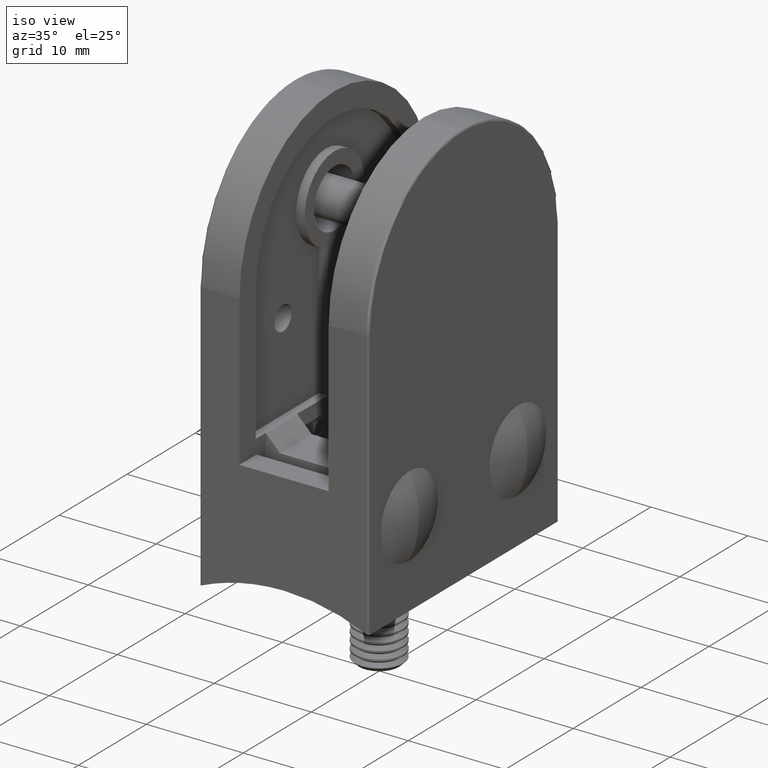
[diagram: clean part render]
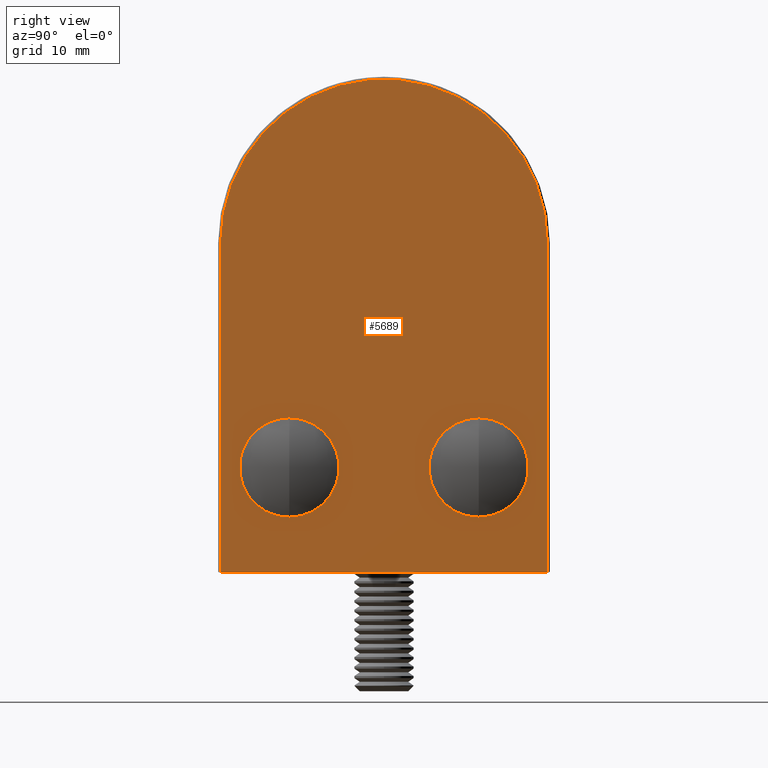
[diagram: tour spotlight — one face highlighted and labeled with its STEP entity id]
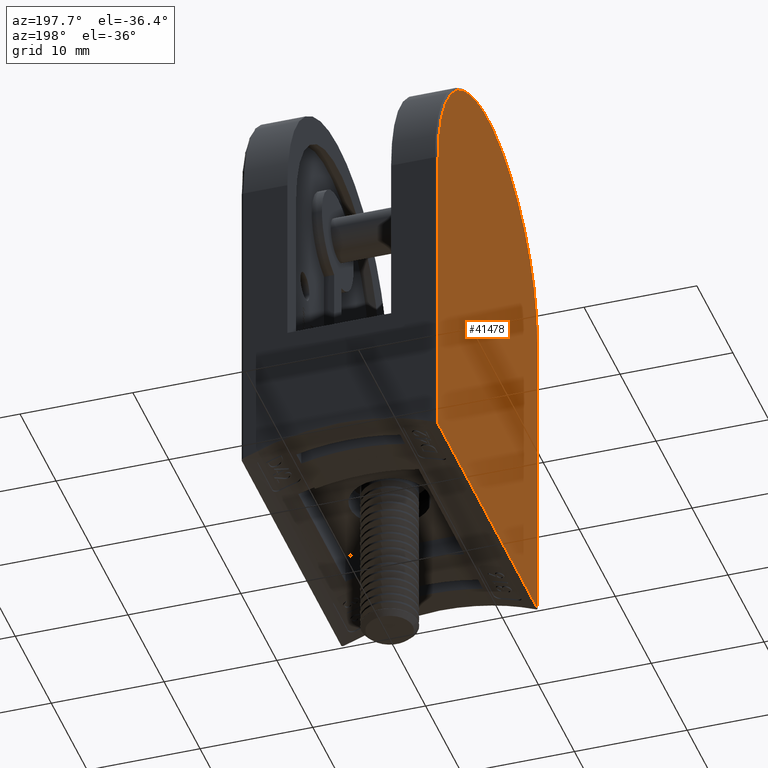
[diagram: tour spotlight — one face highlighted and labeled with its STEP entity id]
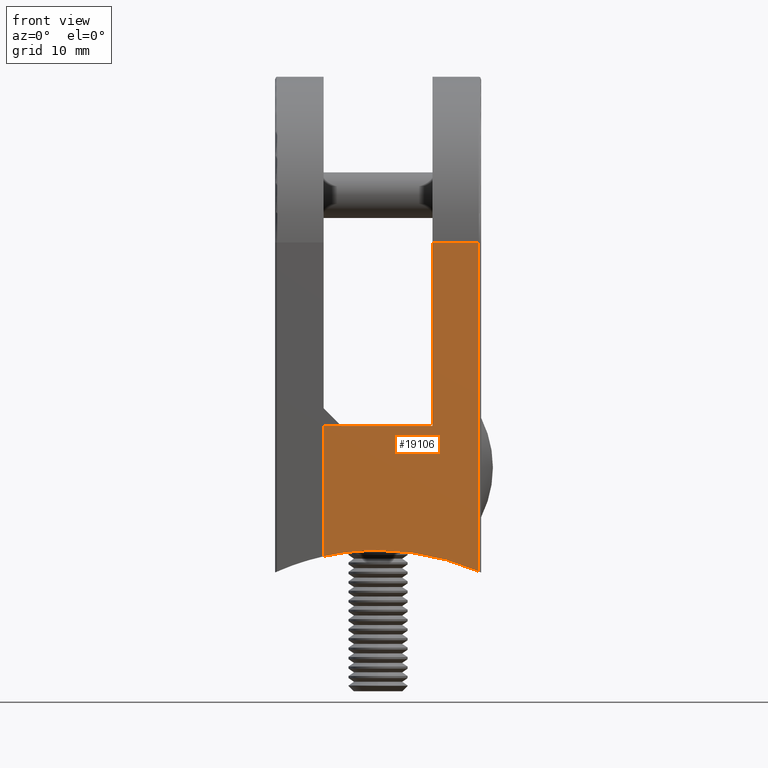
[diagram: tour spotlight — one face highlighted and labeled with its STEP entity id]
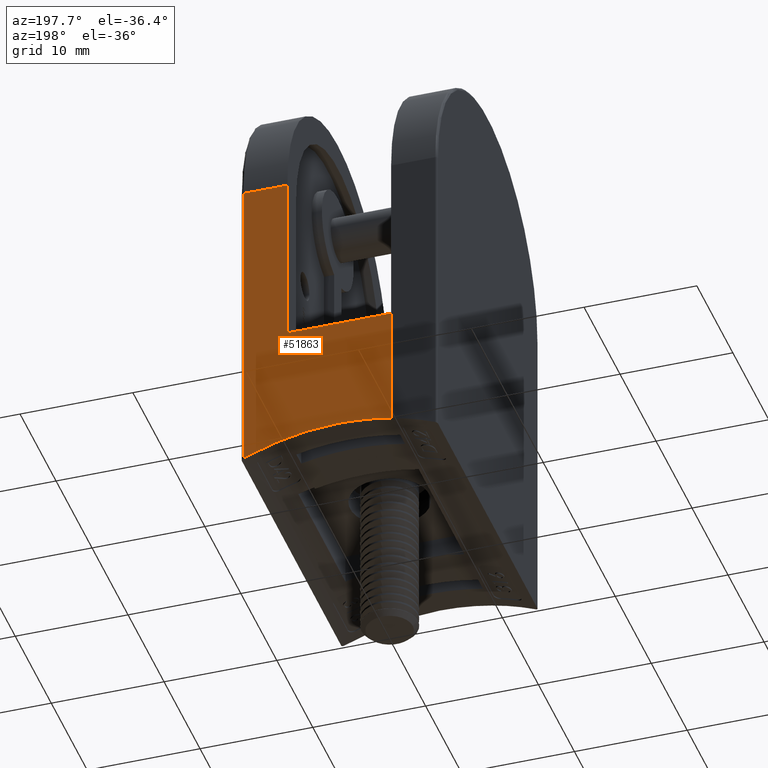
[diagram: tour spotlight — one face highlighted and labeled with its STEP entity id]
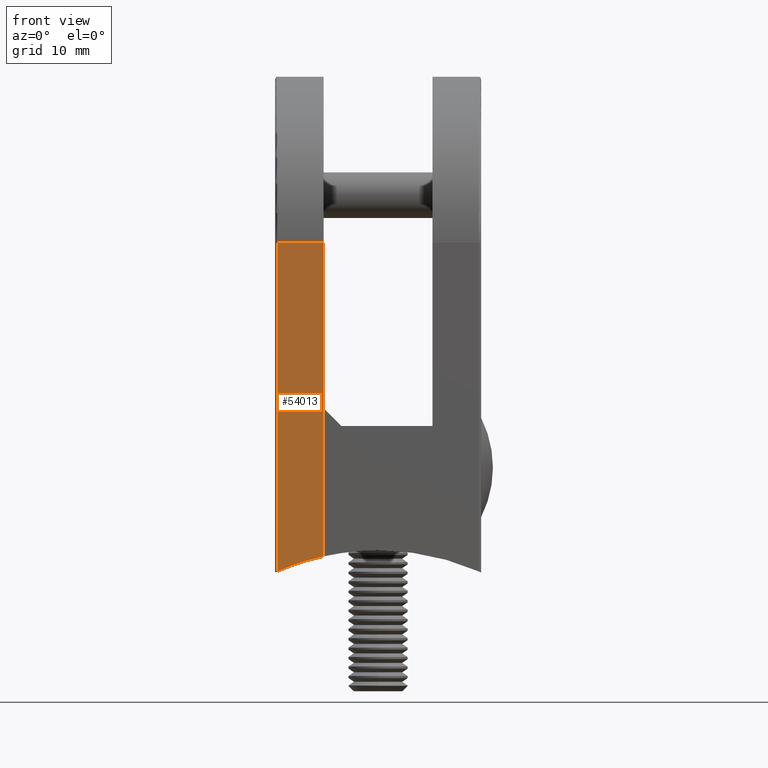
[diagram: tour spotlight — one face highlighted and labeled with its STEP entity id]
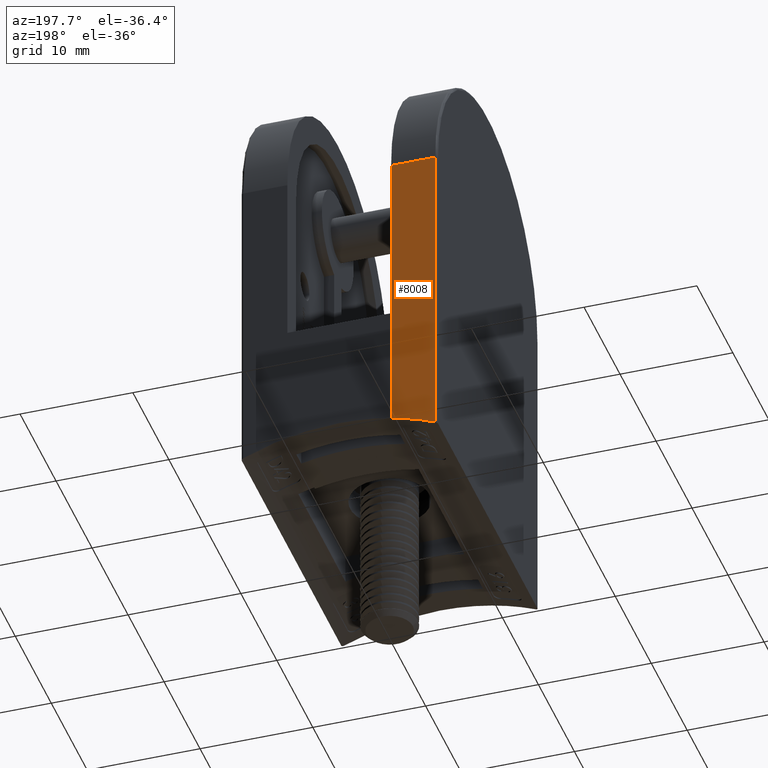
[diagram: tour spotlight — one face highlighted and labeled with its STEP entity id]
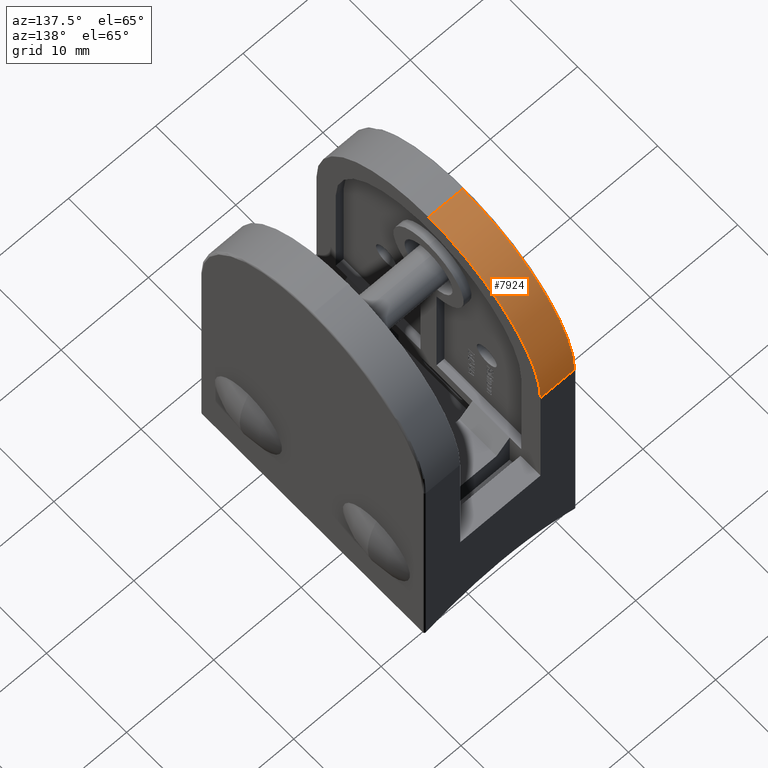
[diagram: tour spotlight — one face highlighted and labeled with its STEP entity id]
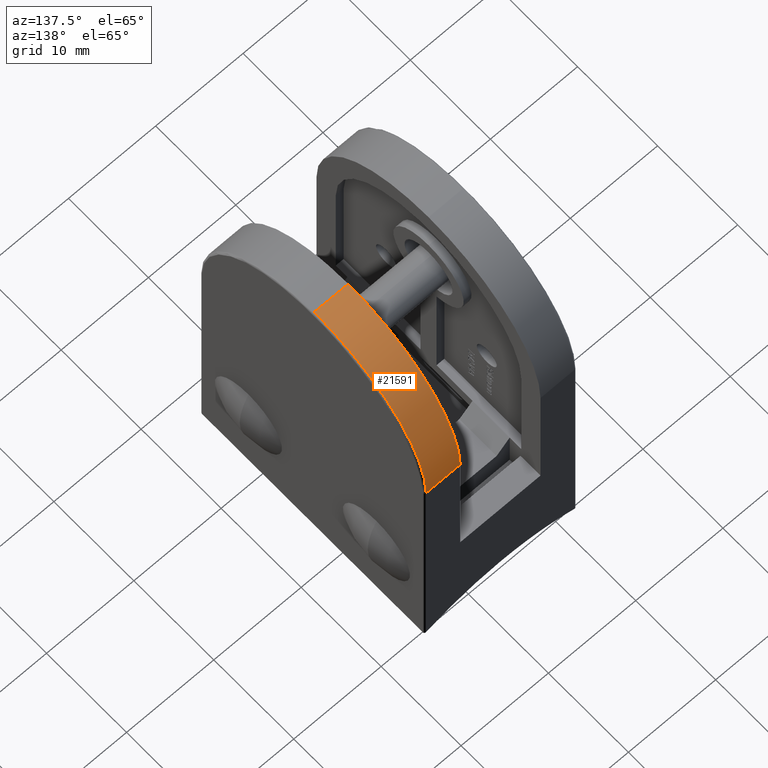
[diagram: tour spotlight — one face highlighted and labeled with its STEP entity id]
A machine part: a face-by-face anatomy tour. The part has 1391 B-rep faces; the first image is the clean iso view, then the 8 largest visible faces are spotlighted one at a time (largest first), each with its STEP entity span.

Face 1 — right view, entity #5689. In plain terms, the highlighted planar face has unit normal (-1, 0, 0).
Definition (entity closure, byte-faithful):
#252 = AXIS2_PLACEMENT_3D ( 'NONE', #45073, #2108, #41267 ) ;
#733 = CARTESIAN_POINT ( 'NONE',  ( 0.0000000000000000000, -13.99999999999999800, -1.867385070818801300 ) ) ;
#1504 = VERTEX_POINT ( 'NONE', #9386 ) ;
#1528 = EDGE_LOOP ( 'NONE', ( #26994, #34986 ) ) ;
#1674 = AXIS2_PLACEMENT_3D ( 'NONE', #27490, #45019, #18858 ) ;
#2108 = DIRECTION ( 'NONE',  ( -1.000000000000000000, -0.0000000000000000000, -0.0000000000000000000 ) ) ;
#2859 = CARTESIAN_POINT ( 'NONE',  ( -3.469446951953614200E-015, -8.000000000000000000, 6.999999999999992900 ) ) ;
#3005 = PLANE ( 'NONE',  #50418 ) ;
#3101 = EDGE_CURVE ( 'NONE', #10426, #50999, #56491, .T. ) ;
#3748 = CARTESIAN_POINT ( 'NONE',  ( 0.0000000000000000000, -13.79999999999999400, 25.99999999999999600 ) ) ;
#4409 = AXIS2_PLACEMENT_3D ( 'NONE', #2859, #11800, #33418 ) ;
#4573 = CIRCLE ( 'NONE', #6510, 4.099999999999998800 ) ;
#5463 = EDGE_CURVE ( 'NONE', #50999, #10426, #4573, .T. ) ;
#5689 = ADVANCED_FACE ( 'NONE', ( #34623, #51680, #7282 ), #3005, .F. ) ;
#6510 = AXIS2_PLACEMENT_3D ( 'NONE', #34314, #43065, #16146 ) ;
#6907 = ORIENTED_EDGE ( 'NONE', *, *, #28330, .T. ) ;
#7007 = CARTESIAN_POINT ( 'NONE',  ( 0.0000000000000000000, 0.0000000000000000000, 25.99999999999999600 ) ) ;
#7282 = FACE_OUTER_BOUND ( 'NONE', #13563, .T. ) ;
#7990 = EDGE_CURVE ( 'NONE', #45856, #21569, #53575, .T. ) ;
#9386 = CARTESIAN_POINT ( 'NONE',  ( 0.0000000000000000000, -13.79999999999999700, -1.867385070818801300 ) ) ;
#9575 = EDGE_CURVE ( 'NONE', #46604, #36673, #17289, .T. ) ;
#10426 = VERTEX_POINT ( 'NONE', #24040 ) ;
#11341 = AXIS2_PLACEMENT_3D ( 'NONE', #29162, #33356, #20708 ) ;
#11800 = DIRECTION ( 'NONE',  ( -1.000000000000000000, -0.0000000000000000000, -0.0000000000000000000 ) ) ;
#12179 = ORIENTED_EDGE ( 'NONE', *, *, #41283, .T. ) ;
#12250 = VECTOR ( 'NONE', #31850, 1000.000000000000000 ) ;
#13563 = EDGE_LOOP ( 'NONE', ( #15792, #12179, #6907, #48902 ) ) ;
#14248 = CARTESIAN_POINT ( 'NONE',  ( 0.0000000000000000000, -13.79999999999999400, 25.99999999999999600 ) ) ;
#14329 = ORIENTED_EDGE ( 'NONE', *, *, #48135, .F. ) ;
#14432 = DIRECTION ( 'NONE',  ( -0.0000000000000000000, 6.672013369141565500E-017, 1.000000000000000000 ) ) ;
#15792 = ORIENTED_EDGE ( 'NONE', *, *, #7990, .T. ) ;
#15831 = DIRECTION ( 'NONE',  ( -0.0000000000000000000, 6.672013369141565500E-017, -1.000000000000000000 ) ) ;
#16146 = DIRECTION ( 'NONE',  ( 0.0000000000000000000, 0.0000000000000000000, 1.000000000000000000 ) ) ;
#16223 = EDGE_CURVE ( 'NONE', #22558, #45856, #50044, .T. ) ;
#17046 = VECTOR ( 'NONE', #14432, 1000.000000000000000 ) ;
#17289 = CIRCLE ( 'NONE', #4409, 4.099999999999998800 ) ;
#18858 = DIRECTION ( 'NONE',  ( 0.0000000000000000000, 0.0000000000000000000, -1.000000000000000000 ) ) ;
#20708 = DIRECTION ( 'NONE',  ( 0.0000000000000000000, 0.0000000000000000000, 1.000000000000000000 ) ) ;
#20726 = DIRECTION ( 'NONE',  ( 1.000000000000000000, 0.0000000000000000000, 0.0000000000000000000 ) ) ;
#21569 = VERTEX_POINT ( 'NONE', #46088 ) ;
#22558 = VERTEX_POINT ( 'NONE', #3748 ) ;
#23010 = CARTESIAN_POINT ( 'NONE',  ( -3.469446951953614200E-015, -8.000000000000000000, 2.899999999999993700 ) ) ;
#23037 = CIRCLE ( 'NONE', #11341, 4.099999999999998800 ) ;
#23850 = ORIENTED_EDGE ( 'NONE', *, *, #9575, .F. ) ;
#23922 = CARTESIAN_POINT ( 'NONE',  ( -3.469446951953614200E-015, -8.000000000000000000, 11.09999999999999300 ) ) ;
#24040 = CARTESIAN_POINT ( 'NONE',  ( -3.469446951953614200E-015, 8.000000000000000000, 2.899999999999993700 ) ) ;
#24265 = CARTESIAN_POINT ( 'NONE',  ( 0.0000000000000000000, 13.79999999999999400, 25.99999999999999600 ) ) ;
#26994 = ORIENTED_EDGE ( 'NONE', *, *, #5463, .F. ) ;
#27269 = EDGE_LOOP ( 'NONE', ( #23850, #14329 ) ) ;
#27490 = CARTESIAN_POINT ( 'NONE',  ( 0.0000000000000000000, 0.0000000000000000000, 25.99999999999999600 ) ) ;
#28330 = EDGE_CURVE ( 'NONE', #1504, #22558, #36182, .T. ) ;
#29026 = CARTESIAN_POINT ( 'NONE',  ( 0.0000000000000000000, 13.79999999999999400, 25.99999999999999600 ) ) ;
#29162 = CARTESIAN_POINT ( 'NONE',  ( -3.469446951953614200E-015, -8.000000000000000000, 6.999999999999992900 ) ) ;
#31850 = DIRECTION ( 'NONE',  ( 0.0000000000000000000, -1.000000000000000000, 0.0000000000000000000 ) ) ;
#33356 = DIRECTION ( 'NONE',  ( -1.000000000000000000, -0.0000000000000000000, -0.0000000000000000000 ) ) ;
#33418 = DIRECTION ( 'NONE',  ( 0.0000000000000000000, 0.0000000000000000000, 1.000000000000000000 ) ) ;
#34314 = CARTESIAN_POINT ( 'NONE',  ( -3.469446951953614200E-015, 8.000000000000000000, 6.999999999999992900 ) ) ;
#34623 = FACE_BOUND ( 'NONE', #1528, .T. ) ;
#34986 = ORIENTED_EDGE ( 'NONE', *, *, #3101, .F. ) ;
#36182 = LINE ( 'NONE', #14248, #17046 ) ;
#36673 = VERTEX_POINT ( 'NONE', #23010 ) ;
#37559 = DIRECTION ( 'NONE',  ( 0.0000000000000000000, 0.0000000000000000000, -1.000000000000000000 ) ) ;
#41267 = DIRECTION ( 'NONE',  ( 0.0000000000000000000, 0.0000000000000000000, 1.000000000000000000 ) ) ;
#41283 = EDGE_CURVE ( 'NONE', #21569, #1504, #46413, .T. ) ;
#43065 = DIRECTION ( 'NONE',  ( -1.000000000000000000, -0.0000000000000000000, -0.0000000000000000000 ) ) ;
#45019 = DIRECTION ( 'NONE',  ( -1.000000000000000000, -0.0000000000000000000, -0.0000000000000000000 ) ) ;
#45073 = CARTESIAN_POINT ( 'NONE',  ( -3.469446951953614200E-015, 8.000000000000000000, 6.999999999999992900 ) ) ;
#45856 = VERTEX_POINT ( 'NONE', #29026 ) ;
#46088 = CARTESIAN_POINT ( 'NONE',  ( 0.0000000000000000000, 13.79999999999999500, -1.867385070818804900 ) ) ;
#46413 = LINE ( 'NONE', #733, #12250 ) ;
#46604 = VERTEX_POINT ( 'NONE', #23922 ) ;
#48135 = EDGE_CURVE ( 'NONE', #36673, #46604, #23037, .T. ) ;
#48902 = ORIENTED_EDGE ( 'NONE', *, *, #16223, .T. ) ;
#50044 = CIRCLE ( 'NONE', #1674, 13.79999999999999400 ) ;
#50418 = AXIS2_PLACEMENT_3D ( 'NONE', #7007, #20726, #37559 ) ;
#50829 = VECTOR ( 'NONE', #15831, 1000.000000000000000 ) ;
#50999 = VERTEX_POINT ( 'NONE', #53514 ) ;
#51680 = FACE_BOUND ( 'NONE', #27269, .T. ) ;
#53514 = CARTESIAN_POINT ( 'NONE',  ( -3.469446951953614200E-015, 8.000000000000000000, 11.09999999999999300 ) ) ;
#53575 = LINE ( 'NONE', #24265, #50829 ) ;
#56491 = CIRCLE ( 'NONE', #252, 4.099999999999998800 ) ;

Face 2 — auxiliary view, entity #41478. In plain terms, the highlighted planar face has unit normal (1, 0, 0).
Definition (entity closure, byte-faithful):
#5869 = CARTESIAN_POINT ( 'NONE',  ( 0.0000000000000000000, -13.79999999999999500, 25.99999999999999600 ) ) ;
#6769 = LINE ( 'NONE', #28755, #21765 ) ;
#9060 = DIRECTION ( 'NONE',  ( -0.0000000000000000000, -0.0000000000000000000, 1.000000000000000000 ) ) ;
#9770 = DIRECTION ( 'NONE',  ( 0.0000000000000000000, -1.000000000000000000, 0.0000000000000000000 ) ) ;
#10537 = ORIENTED_EDGE ( 'NONE', *, *, #15087, .T. ) ;
#11217 = VERTEX_POINT ( 'NONE', #39034 ) ;
#11708 = DIRECTION ( 'NONE',  ( 0.0000000000000000000, -0.0000000000000000000, -1.000000000000000000 ) ) ;
#12153 = EDGE_CURVE ( 'NONE', #18859, #32828, #42415, .T. ) ;
#12191 = DIRECTION ( 'NONE',  ( 0.0000000000000000000, 0.0000000000000000000, -1.000000000000000000 ) ) ;
#12469 = DIRECTION ( 'NONE',  ( 0.0000000000000000000, 0.0000000000000000000, -1.000000000000000000 ) ) ;
#13595 = CARTESIAN_POINT ( 'NONE',  ( 0.0000000000000000000, -13.79999999999999500, 25.99999999999999600 ) ) ;
#14005 = EDGE_LOOP ( 'NONE', ( #30277, #10537, #47137, #46730 ) ) ;
#15087 = EDGE_CURVE ( 'NONE', #21243, #18859, #20742, .T. ) ;
#18859 = VERTEX_POINT ( 'NONE', #24124 ) ;
#20742 = LINE ( 'NONE', #49269, #28287 ) ;
#21243 = VERTEX_POINT ( 'NONE', #55868 ) ;
#21765 = VECTOR ( 'NONE', #11708, 1000.000000000000000 ) ;
#24124 = CARTESIAN_POINT ( 'NONE',  ( 8.131516293641283300E-017, -13.79999999999999500, -1.867385070818794500 ) ) ;
#25125 = DIRECTION ( 'NONE',  ( 1.000000000000000000, 0.0000000000000000000, 0.0000000000000000000 ) ) ;
#25198 = DIRECTION ( 'NONE',  ( -1.000000000000000000, -0.0000000000000000000, -0.0000000000000000000 ) ) ;
#28287 = VECTOR ( 'NONE', #9770, 1000.000000000000000 ) ;
#28755 = CARTESIAN_POINT ( 'NONE',  ( 0.0000000000000000000, 13.79999999999999500, 25.99999999999999600 ) ) ;
#28830 = EDGE_CURVE ( 'NONE', #11217, #21243, #6769, .T. ) ;
#29526 = EDGE_CURVE ( 'NONE', #32828, #11217, #51078, .T. ) ;
#30266 = AXIS2_PLACEMENT_3D ( 'NONE', #47895, #25198, #12191 ) ;
#30277 = ORIENTED_EDGE ( 'NONE', *, *, #28830, .T. ) ;
#32828 = VERTEX_POINT ( 'NONE', #5869 ) ;
#34911 = AXIS2_PLACEMENT_3D ( 'NONE', #47068, #25125, #12469 ) ;
#39034 = CARTESIAN_POINT ( 'NONE',  ( 0.0000000000000000000, 13.79999999999999500, 25.99999999999999600 ) ) ;
#39621 = FACE_OUTER_BOUND ( 'NONE', #14005, .T. ) ;
#41478 = ADVANCED_FACE ( 'NONE', ( #39621 ), #51267, .F. ) ;
#42415 = LINE ( 'NONE', #13595, #55384 ) ;
#46730 = ORIENTED_EDGE ( 'NONE', *, *, #29526, .T. ) ;
#47068 = CARTESIAN_POINT ( 'NONE',  ( 0.0000000000000000000, 0.0000000000000000000, 25.99999999999999600 ) ) ;
#47137 = ORIENTED_EDGE ( 'NONE', *, *, #12153, .T. ) ;
#47895 = CARTESIAN_POINT ( 'NONE',  ( 0.0000000000000000000, 0.0000000000000000000, 25.99999999999999600 ) ) ;
#49269 = CARTESIAN_POINT ( 'NONE',  ( 0.0000000000000000000, -13.99999999999999500, -1.867385070818794500 ) ) ;
#51078 = CIRCLE ( 'NONE', #30266, 13.79999999999999500 ) ;
#51267 = PLANE ( 'NONE',  #34911 ) ;
#55384 = VECTOR ( 'NONE', #9060, 1000.000000000000000 ) ;
#55868 = CARTESIAN_POINT ( 'NONE',  ( 0.0000000000000000000, 13.79999999999999400, -1.867385070818794500 ) ) ;

Face 3 — front view, entity #19106. In plain terms, the highlighted planar face has unit normal (-0, 1, 0).
Definition (entity closure, byte-faithful):
#1044 = EDGE_LOOP ( 'NONE', ( #2910, #45264, #47689, #24239, #47419, #12724, #35125 ) ) ;
#2130 = CARTESIAN_POINT ( 'NONE',  ( 0.2000000000000000900, 13.99999999999999300, 25.99999999999999600 ) ) ;
#2910 = ORIENTED_EDGE ( 'NONE', *, *, #26234, .F. ) ;
#5879 = CARTESIAN_POINT ( 'NONE',  ( 8.699999999999997500, 13.99999999999999300, -3.469446951953614200E-015 ) ) ;
#6659 = DIRECTION ( 'NONE',  ( 0.0000000000000000000, -6.672013369141565500E-017, 1.000000000000000000 ) ) ;
#7427 = AXIS2_PLACEMENT_3D ( 'NONE', #10111, #53080, #14282 ) ;
#7627 = CARTESIAN_POINT ( 'NONE',  ( 4.099999999999999600, 13.99999999999999500, 10.49999999999999300 ) ) ;
#9008 = LINE ( 'NONE', #44542, #19904 ) ;
#9021 = LINE ( 'NONE', #15811, #11745 ) ;
#9395 = CARTESIAN_POINT ( 'NONE',  ( 13.29999999999999900, 13.99999999999999500, 10.49999999999999300 ) ) ;
#9573 = VERTEX_POINT ( 'NONE', #28274 ) ;
#10099 = VERTEX_POINT ( 'NONE', #37485 ) ;
#10111 = CARTESIAN_POINT ( 'NONE',  ( 8.699999999999997500, 13.99999999999999500, -21.19999999999999900 ) ) ;
#11514 = PLANE ( 'NONE',  #36126 ) ;
#11745 = VECTOR ( 'NONE', #46753, 1000.000000000000000 ) ;
#11874 = CARTESIAN_POINT ( 'NONE',  ( 4.099999999999999600, 13.99999999999999300, 25.99999999999999600 ) ) ;
#12724 = ORIENTED_EDGE ( 'NONE', *, *, #52617, .F. ) ;
#13548 = EDGE_CURVE ( 'NONE', #42628, #9573, #19482, .T. ) ;
#14282 = DIRECTION ( 'NONE',  ( 0.0000000000000000000, 8.182657905550979500E-017, -1.000000000000000000 ) ) ;
#15811 = CARTESIAN_POINT ( 'NONE',  ( 4.099999999999999600, 13.99999999999999300, 25.99999999999999600 ) ) ;
#15889 = CARTESIAN_POINT ( 'NONE',  ( 4.099999999999999600, 13.99999999999999300, 25.99999999999999600 ) ) ;
#16526 = VECTOR ( 'NONE', #22380, 1000.000000000000000 ) ;
#16625 = DIRECTION ( 'NONE',  ( -1.000000000000000000, -0.0000000000000000000, -0.0000000000000000000 ) ) ;
#17618 = EDGE_CURVE ( 'NONE', #9573, #35748, #36942, .T. ) ;
#19106 = ADVANCED_FACE ( 'NONE', ( #51842 ), #11514, .F. ) ;
#19482 = CIRCLE ( 'NONE', #7427, 21.19999999999999200 ) ;
#19904 = VECTOR ( 'NONE', #40744, 1000.000000000000000 ) ;
#20813 = DIRECTION ( 'NONE',  ( 0.0000000000000000000, -1.000000000000000000, -6.672013369141565500E-017 ) ) ;
#22380 = DIRECTION ( 'NONE',  ( -1.000000000000000000, -0.0000000000000000000, -0.0000000000000000000 ) ) ;
#24239 = ORIENTED_EDGE ( 'NONE', *, *, #17618, .T. ) ;
#24641 = EDGE_CURVE ( 'NONE', #45860, #32531, #43880, .T. ) ;
#26234 = EDGE_CURVE ( 'NONE', #40509, #45860, #9008, .T. ) ;
#26394 = CIRCLE ( 'NONE', #47946, 21.19999999999999200 ) ;
#26404 = VECTOR ( 'NONE', #16625, 1000.000000000000000 ) ;
#27398 = VECTOR ( 'NONE', #6659, 1000.000000000000000 ) ;
#28274 = CARTESIAN_POINT ( 'NONE',  ( 0.2000000000000001200, 13.99999999999999500, -1.778620028432591300 ) ) ;
#31448 = EDGE_CURVE ( 'NONE', #10099, #35748, #45506, .T. ) ;
#32531 = VERTEX_POINT ( 'NONE', #7627 ) ;
#35125 = ORIENTED_EDGE ( 'NONE', *, *, #24641, .F. ) ;
#35748 = VERTEX_POINT ( 'NONE', #2130 ) ;
#35829 = EDGE_CURVE ( 'NONE', #40509, #42628, #26394, .T. ) ;
#36126 = AXIS2_PLACEMENT_3D ( 'NONE', #15889, #46449, #37870 ) ;
#36942 = LINE ( 'NONE', #50373, #27398 ) ;
#37485 = CARTESIAN_POINT ( 'NONE',  ( 4.099999999999999600, 13.99999999999999300, 25.99999999999999600 ) ) ;
#37870 = DIRECTION ( 'NONE',  ( 0.0000000000000000000, 6.672013369141565500E-017, -1.000000000000000000 ) ) ;
#40509 = VERTEX_POINT ( 'NONE', #44045 ) ;
#40744 = DIRECTION ( 'NONE',  ( 0.0000000000000000000, 0.0000000000000000000, 1.000000000000000000 ) ) ;
#42596 = CARTESIAN_POINT ( 'NONE',  ( 8.699999999999997500, 13.99999999999999500, -21.19999999999999900 ) ) ;
#42628 = VERTEX_POINT ( 'NONE', #5879 ) ;
#43880 = LINE ( 'NONE', #9395, #16526 ) ;
#44045 = CARTESIAN_POINT ( 'NONE',  ( 13.29999999999999700, 13.99999999999999500, -0.5050730854153605600 ) ) ;
#44542 = CARTESIAN_POINT ( 'NONE',  ( 13.29999999999999900, 13.99999999999999500, -6.938893903907228400E-015 ) ) ;
#45264 = ORIENTED_EDGE ( 'NONE', *, *, #35829, .T. ) ;
#45506 = LINE ( 'NONE', #11874, #26404 ) ;
#45860 = VERTEX_POINT ( 'NONE', #47103 ) ;
#46449 = DIRECTION ( 'NONE',  ( 0.0000000000000000000, -1.000000000000000000, -6.672013369141565500E-017 ) ) ;
#46753 = DIRECTION ( 'NONE',  ( -0.0000000000000000000, -6.672013369141565500E-017, 1.000000000000000000 ) ) ;
#47103 = CARTESIAN_POINT ( 'NONE',  ( 13.29999999999999900, 13.99999999999999500, 10.49999999999999300 ) ) ;
#47419 = ORIENTED_EDGE ( 'NONE', *, *, #31448, .F. ) ;
#47689 = ORIENTED_EDGE ( 'NONE', *, *, #13548, .T. ) ;
#47946 = AXIS2_PLACEMENT_3D ( 'NONE', #42596, #20813, #51358 ) ;
#50373 = CARTESIAN_POINT ( 'NONE',  ( 0.2000000000000000900, 13.99999999999999300, 25.99999999999999600 ) ) ;
#51358 = DIRECTION ( 'NONE',  ( 0.0000000000000000000, 8.182657905550979500E-017, -1.000000000000000000 ) ) ;
#51842 = FACE_OUTER_BOUND ( 'NONE', #1044, .T. ) ;
#52617 = EDGE_CURVE ( 'NONE', #32531, #10099, #9021, .T. ) ;
#53080 = DIRECTION ( 'NONE',  ( 0.0000000000000000000, -1.000000000000000000, -6.672013369141565500E-017 ) ) ;

Face 4 — auxiliary view, entity #51863. In plain terms, the highlighted planar face has unit normal (0, -1, -0).
Definition (entity closure, byte-faithful):
#1352 = CIRCLE ( 'NONE', #36514, 21.19999999999999600 ) ;
#2216 = EDGE_CURVE ( 'NONE', #27933, #5522, #5152, .T. ) ;
#2517 = CARTESIAN_POINT ( 'NONE',  ( 8.699999999999997500, -13.99999999999999800, -3.469446951953614200E-015 ) ) ;
#2562 = DIRECTION ( 'NONE',  ( 0.0000000000000000000, 1.000000000000000000, 0.0000000000000000000 ) ) ;
#2936 = ORIENTED_EDGE ( 'NONE', *, *, #46197, .T. ) ;
#3606 = PLANE ( 'NONE',  #36255 ) ;
#4140 = AXIS2_PLACEMENT_3D ( 'NONE', #41521, #2562, #33122 ) ;
#4173 = DIRECTION ( 'NONE',  ( 0.0000000000000000000, 1.000000000000000000, -6.672013369141565500E-017 ) ) ;
#4229 = CIRCLE ( 'NONE', #4140, 21.19999999999999600 ) ;
#4740 = VECTOR ( 'NONE', #21837, 1000.000000000000000 ) ;
#5152 = LINE ( 'NONE', #26520, #9914 ) ;
#5522 = VERTEX_POINT ( 'NONE', #34702 ) ;
#6039 = VERTEX_POINT ( 'NONE', #11904 ) ;
#6929 = ORIENTED_EDGE ( 'NONE', *, *, #38538, .F. ) ;
#7756 = CARTESIAN_POINT ( 'NONE',  ( 13.29999999999999900, -13.99999999999999800, 10.49999999999999100 ) ) ;
#8290 = LINE ( 'NONE', #32507, #41796 ) ;
#9123 = DIRECTION ( 'NONE',  ( -0.0000000000000000000, -6.672013369141565500E-017, -1.000000000000000000 ) ) ;
#9914 = VECTOR ( 'NONE', #9123, 1000.000000000000000 ) ;
#10586 = EDGE_LOOP ( 'NONE', ( #35689, #2936, #52749, #6929, #20674, #44647, #23591 ) ) ;
#11904 = CARTESIAN_POINT ( 'NONE',  ( 13.29999999999999900, -13.99999999999999800, -0.5050730854153571100 ) ) ;
#11998 = CARTESIAN_POINT ( 'NONE',  ( 4.099999999999999600, -13.99999999999999500, -6.938893903907228400E-015 ) ) ;
#16025 = VERTEX_POINT ( 'NONE', #2517 ) ;
#17251 = EDGE_CURVE ( 'NONE', #27933, #45851, #8290, .T. ) ;
#17253 = CARTESIAN_POINT ( 'NONE',  ( 0.2000000000000000900, -13.99999999999999500, -6.938893903907228400E-015 ) ) ;
#18675 = EDGE_CURVE ( 'NONE', #45851, #43530, #55316, .T. ) ;
#19190 = DIRECTION ( 'NONE',  ( 0.0000000000000000000, 1.000000000000000000, 0.0000000000000000000 ) ) ;
#19344 = VERTEX_POINT ( 'NONE', #49643 ) ;
#20572 = CARTESIAN_POINT ( 'NONE',  ( 0.2000000000000000900, -13.99999999999999300, 25.99999999999999600 ) ) ;
#20643 = LINE ( 'NONE', #49593, #43232 ) ;
#20674 = ORIENTED_EDGE ( 'NONE', *, *, #21214, .T. ) ;
#21214 = EDGE_CURVE ( 'NONE', #19344, #5522, #42882, .T. ) ;
#21837 = DIRECTION ( 'NONE',  ( 0.0000000000000000000, -6.672013369141565500E-017, -1.000000000000000000 ) ) ;
#23591 = ORIENTED_EDGE ( 'NONE', *, *, #17251, .T. ) ;
#25155 = EDGE_CURVE ( 'NONE', #16025, #6039, #4229, .T. ) ;
#25895 = DIRECTION ( 'NONE',  ( -1.000000000000000000, -0.0000000000000000000, -0.0000000000000000000 ) ) ;
#26520 = CARTESIAN_POINT ( 'NONE',  ( 4.099999999999999600, -13.99999999999999500, -6.938893903907228400E-015 ) ) ;
#26911 = FACE_OUTER_BOUND ( 'NONE', #10586, .T. ) ;
#27933 = VERTEX_POINT ( 'NONE', #48606 ) ;
#32040 = DIRECTION ( 'NONE',  ( -0.0000000000000000000, 3.304235192336776500E-016, -1.000000000000000000 ) ) ;
#32318 = DIRECTION ( 'NONE',  ( -1.000000000000000000, -0.0000000000000000000, -0.0000000000000000000 ) ) ;
#32507 = CARTESIAN_POINT ( 'NONE',  ( 4.099999999999999600, -13.99999999999999300, 25.99999999999999600 ) ) ;
#33122 = DIRECTION ( 'NONE',  ( 0.0000000000000000000, 0.0000000000000000000, 1.000000000000000000 ) ) ;
#34702 = CARTESIAN_POINT ( 'NONE',  ( 4.099999999999999600, -13.99999999999999500, 10.49999999999999100 ) ) ;
#35689 = ORIENTED_EDGE ( 'NONE', *, *, #18675, .T. ) ;
#36255 = AXIS2_PLACEMENT_3D ( 'NONE', #11998, #4173, #47886 ) ;
#36514 = AXIS2_PLACEMENT_3D ( 'NONE', #45356, #19190, #54153 ) ;
#38538 = EDGE_CURVE ( 'NONE', #19344, #6039, #20643, .T. ) ;
#41521 = CARTESIAN_POINT ( 'NONE',  ( 8.699999999999997500, -13.99999999999999800, -21.19999999999999900 ) ) ;
#41796 = VECTOR ( 'NONE', #32318, 1000.000000000000000 ) ;
#42882 = LINE ( 'NONE', #7756, #51681 ) ;
#43232 = VECTOR ( 'NONE', #32040, 1000.000000000000000 ) ;
#43530 = VERTEX_POINT ( 'NONE', #47774 ) ;
#44647 = ORIENTED_EDGE ( 'NONE', *, *, #2216, .F. ) ;
#45356 = CARTESIAN_POINT ( 'NONE',  ( 8.699999999999997500, -13.99999999999999800, -21.19999999999999900 ) ) ;
#45851 = VERTEX_POINT ( 'NONE', #20572 ) ;
#46197 = EDGE_CURVE ( 'NONE', #43530, #16025, #1352, .T. ) ;
#47774 = CARTESIAN_POINT ( 'NONE',  ( 0.2000000000000005100, -13.99999999999999600, -1.778620028432584400 ) ) ;
#47886 = DIRECTION ( 'NONE',  ( 0.0000000000000000000, 6.672013369141565500E-017, 1.000000000000000000 ) ) ;
#48606 = CARTESIAN_POINT ( 'NONE',  ( 4.099999999999999600, -13.99999999999999300, 25.99999999999999600 ) ) ;
#49593 = CARTESIAN_POINT ( 'NONE',  ( 13.29999999999999900, -13.99999999999999500, -6.938893903907228400E-015 ) ) ;
#49643 = CARTESIAN_POINT ( 'NONE',  ( 13.29999999999999900, -13.99999999999999800, 10.49999999999999100 ) ) ;
#51681 = VECTOR ( 'NONE', #25895, 1000.000000000000000 ) ;
#51863 = ADVANCED_FACE ( 'NONE', ( #26911 ), #3606, .F. ) ;
#52749 = ORIENTED_EDGE ( 'NONE', *, *, #25155, .T. ) ;
#54153 = DIRECTION ( 'NONE',  ( 0.0000000000000000000, 0.0000000000000000000, 1.000000000000000000 ) ) ;
#55316 = LINE ( 'NONE', #17253, #4740 ) ;

Face 5 — front view, entity #54013. In plain terms, the highlighted planar face has unit normal (0, 1, 0).
Definition (entity closure, byte-faithful):
#1145 = LINE ( 'NONE', #16132, #43469 ) ;
#1708 = DIRECTION ( 'NONE',  ( -0.0000000000000000000, -0.0000000000000000000, -1.000000000000000000 ) ) ;
#3211 = LINE ( 'NONE', #28364, #49651 ) ;
#4085 = EDGE_CURVE ( 'NONE', #46051, #25555, #34059, .T. ) ;
#5667 = EDGE_CURVE ( 'NONE', #46051, #23501, #1145, .T. ) ;
#6083 = DIRECTION ( 'NONE',  ( 0.0000000000000000000, 1.000000000000000000, 0.0000000000000000000 ) ) ;
#6578 = DIRECTION ( 'NONE',  ( 0.0000000000000000000, 0.0000000000000000000, -1.000000000000000000 ) ) ;
#7661 = FACE_OUTER_BOUND ( 'NONE', #45403, .T. ) ;
#7986 = ORIENTED_EDGE ( 'NONE', *, *, #5667, .T. ) ;
#9240 = VERTEX_POINT ( 'NONE', #12454 ) ;
#9915 = PLANE ( 'NONE',  #41118 ) ;
#11047 = CIRCLE ( 'NONE', #14991, 21.19999999999999900 ) ;
#11253 = EDGE_CURVE ( 'NONE', #9240, #25555, #11047, .T. ) ;
#11459 = ORIENTED_EDGE ( 'NONE', *, *, #4085, .F. ) ;
#12454 = CARTESIAN_POINT ( 'NONE',  ( 0.2000000000000000900, -13.99999999999999500, -1.778620028432580800 ) ) ;
#14991 = AXIS2_PLACEMENT_3D ( 'NONE', #44764, #21839, #35026 ) ;
#16132 = CARTESIAN_POINT ( 'NONE',  ( 4.099999999999999600, -13.99999999999999500, 25.99999999999999600 ) ) ;
#19041 = CARTESIAN_POINT ( 'NONE',  ( 0.2000000000000000900, -13.99999999999999500, 25.99999999999999600 ) ) ;
#21839 = DIRECTION ( 'NONE',  ( 0.0000000000000000000, 1.000000000000000000, 0.0000000000000000000 ) ) ;
#23501 = VERTEX_POINT ( 'NONE', #19041 ) ;
#25555 = VERTEX_POINT ( 'NONE', #29254 ) ;
#26749 = CARTESIAN_POINT ( 'NONE',  ( 4.099999999999999600, -13.99999999999999500, -3.469446951953614200E-015 ) ) ;
#28364 = CARTESIAN_POINT ( 'NONE',  ( 0.2000000000000000900, -13.99999999999999500, -3.469446951953614200E-015 ) ) ;
#29254 = CARTESIAN_POINT ( 'NONE',  ( 4.100000000000000500, -13.99999999999999500, -0.5050730854153535600 ) ) ;
#31474 = ORIENTED_EDGE ( 'NONE', *, *, #35332, .T. ) ;
#34059 = LINE ( 'NONE', #26749, #44961 ) ;
#35026 = DIRECTION ( 'NONE',  ( 0.0000000000000000000, 0.0000000000000000000, 1.000000000000000000 ) ) ;
#35332 = EDGE_CURVE ( 'NONE', #23501, #9240, #3211, .T. ) ;
#36070 = DIRECTION ( 'NONE',  ( 0.0000000000000000000, -0.0000000000000000000, 1.000000000000000000 ) ) ;
#38129 = DIRECTION ( 'NONE',  ( -1.000000000000000000, -0.0000000000000000000, -0.0000000000000000000 ) ) ;
#39656 = CARTESIAN_POINT ( 'NONE',  ( 4.099999999999999600, -13.99999999999999500, 25.99999999999999600 ) ) ;
#41118 = AXIS2_PLACEMENT_3D ( 'NONE', #45034, #6083, #36070 ) ;
#43469 = VECTOR ( 'NONE', #38129, 1000.000000000000000 ) ;
#44764 = CARTESIAN_POINT ( 'NONE',  ( 8.699999999999995700, -13.99999999999999500, -21.19999999999999900 ) ) ;
#44961 = VECTOR ( 'NONE', #1708, 1000.000000000000000 ) ;
#45034 = CARTESIAN_POINT ( 'NONE',  ( 4.099999999999999600, -13.99999999999999500, -3.469446951953614200E-015 ) ) ;
#45403 = EDGE_LOOP ( 'NONE', ( #31474, #50974, #11459, #7986 ) ) ;
#46051 = VERTEX_POINT ( 'NONE', #39656 ) ;
#49651 = VECTOR ( 'NONE', #6578, 1000.000000000000000 ) ;
#50974 = ORIENTED_EDGE ( 'NONE', *, *, #11253, .T. ) ;
#54013 = ADVANCED_FACE ( 'NONE', ( #7661 ), #9915, .F. ) ;

Face 6 — auxiliary view, entity #8008. In plain terms, the highlighted planar face has unit normal (0, -1, 0).
Definition (entity closure, byte-faithful):
#1054 = DIRECTION ( 'NONE',  ( -0.0000000000000000000, 0.0000000000000000000, 1.000000000000000000 ) ) ;
#3608 = ORIENTED_EDGE ( 'NONE', *, *, #29454, .F. ) ;
#4556 = VERTEX_POINT ( 'NONE', #42076 ) ;
#6882 = DIRECTION ( 'NONE',  ( 0.0000000000000000000, -0.0000000000000000000, -1.000000000000000000 ) ) ;
#8008 = ADVANCED_FACE ( 'NONE', ( #46060 ), #15445, .F. ) ;
#8327 = CARTESIAN_POINT ( 'NONE',  ( 0.2000000000000005100, 13.99999999999999500, -1.778620028432580800 ) ) ;
#10003 = LINE ( 'NONE', #44194, #54445 ) ;
#10997 = ORIENTED_EDGE ( 'NONE', *, *, #31180, .T. ) ;
#14063 = DIRECTION ( 'NONE',  ( 0.0000000000000000000, 0.0000000000000000000, 1.000000000000000000 ) ) ;
#14442 = DIRECTION ( 'NONE',  ( 0.0000000000000000000, 1.000000000000000000, 0.0000000000000000000 ) ) ;
#15445 = PLANE ( 'NONE',  #35109 ) ;
#17155 = CARTESIAN_POINT ( 'NONE',  ( 4.099999999999999600, 13.99999999999999500, 25.99999999999999600 ) ) ;
#21010 = EDGE_CURVE ( 'NONE', #55304, #31407, #33313, .T. ) ;
#22317 = ORIENTED_EDGE ( 'NONE', *, *, #33436, .F. ) ;
#23272 = CARTESIAN_POINT ( 'NONE',  ( 4.099999999999999600, 13.99999999999999500, 25.99999999999999600 ) ) ;
#25627 = CARTESIAN_POINT ( 'NONE',  ( 4.100000000000000500, 13.99999999999999500, -0.5050730854153535600 ) ) ;
#27224 = DIRECTION ( 'NONE',  ( -1.000000000000000000, -0.0000000000000000000, -0.0000000000000000000 ) ) ;
#29308 = VECTOR ( 'NONE', #55935, 1000.000000000000000 ) ;
#29454 = EDGE_CURVE ( 'NONE', #31407, #50130, #50431, .T. ) ;
#31180 = EDGE_CURVE ( 'NONE', #55304, #4556, #10003, .T. ) ;
#31407 = VERTEX_POINT ( 'NONE', #25627 ) ;
#33074 = LINE ( 'NONE', #53347, #36449 ) ;
#33313 = CIRCLE ( 'NONE', #52245, 21.19999999999999900 ) ;
#33435 = DIRECTION ( 'NONE',  ( 0.0000000000000000000, -1.000000000000000000, 0.0000000000000000000 ) ) ;
#33436 = EDGE_CURVE ( 'NONE', #50130, #4556, #33074, .T. ) ;
#35109 = AXIS2_PLACEMENT_3D ( 'NONE', #46032, #33435, #6882 ) ;
#36051 = CARTESIAN_POINT ( 'NONE',  ( 8.699999999999995700, 13.99999999999999500, -21.19999999999999900 ) ) ;
#36449 = VECTOR ( 'NONE', #27224, 1000.000000000000000 ) ;
#42076 = CARTESIAN_POINT ( 'NONE',  ( 0.2000000000000000900, 13.99999999999999500, 25.99999999999999600 ) ) ;
#42672 = EDGE_LOOP ( 'NONE', ( #3608, #55204, #10997, #22317 ) ) ;
#44194 = CARTESIAN_POINT ( 'NONE',  ( 0.2000000000000000900, 13.99999999999999500, 25.99999999999999600 ) ) ;
#46032 = CARTESIAN_POINT ( 'NONE',  ( 4.099999999999999600, 13.99999999999999500, 25.99999999999999600 ) ) ;
#46060 = FACE_OUTER_BOUND ( 'NONE', #42672, .T. ) ;
#50130 = VERTEX_POINT ( 'NONE', #23272 ) ;
#50431 = LINE ( 'NONE', #17155, #29308 ) ;
#52245 = AXIS2_PLACEMENT_3D ( 'NONE', #36051, #14442, #14063 ) ;
#53347 = CARTESIAN_POINT ( 'NONE',  ( 4.099999999999999600, 13.99999999999999500, 25.99999999999999600 ) ) ;
#54445 = VECTOR ( 'NONE', #1054, 1000.000000000000000 ) ;
#55204 = ORIENTED_EDGE ( 'NONE', *, *, #21010, .F. ) ;
#55304 = VERTEX_POINT ( 'NONE', #8327 ) ;
#55935 = DIRECTION ( 'NONE',  ( -0.0000000000000000000, -0.0000000000000000000, 1.000000000000000000 ) ) ;

Face 7 — auxiliary view, entity #7924. In plain terms, the highlighted cylindrical surface (partial cylindrical patch) has radius 14 mm, axis along (-1, -0, -0).
Definition (entity closure, byte-faithful):
#89 = CARTESIAN_POINT ( 'NONE',  ( 4.099999999999999600, 0.0000000000000000000, 39.99999999999999300 ) ) ;
#2633 = VERTEX_POINT ( 'NONE', #89 ) ;
#4556 = VERTEX_POINT ( 'NONE', #42076 ) ;
#5999 = EDGE_LOOP ( 'NONE', ( #28908, #13190, #49453, #28113 ) ) ;
#7924 = ADVANCED_FACE ( 'NONE', ( #26968 ), #17336, .T. ) ;
#8007 = AXIS2_PLACEMENT_3D ( 'NONE', #27555, #41273, #36302 ) ;
#8967 = CARTESIAN_POINT ( 'NONE',  ( 0.2000000000000000900, 0.0000000000000000000, 39.99999999999999300 ) ) ;
#12786 = AXIS2_PLACEMENT_3D ( 'NONE', #31208, #14530, #44349 ) ;
#13190 = ORIENTED_EDGE ( 'NONE', *, *, #31999, .F. ) ;
#13943 = CIRCLE ( 'NONE', #12786, 13.99999999999999500 ) ;
#14530 = DIRECTION ( 'NONE',  ( 1.000000000000000000, 0.0000000000000000000, 0.0000000000000000000 ) ) ;
#14877 = LINE ( 'NONE', #27153, #39513 ) ;
#17336 = CYLINDRICAL_SURFACE ( 'NONE', #8007, 13.99999999999999800 ) ;
#18516 = DIRECTION ( 'NONE',  ( -1.000000000000000000, -0.0000000000000000000, -0.0000000000000000000 ) ) ;
#19680 = AXIS2_PLACEMENT_3D ( 'NONE', #26934, #23064, #31315 ) ;
#23064 = DIRECTION ( 'NONE',  ( 1.000000000000000000, 0.0000000000000000000, 0.0000000000000000000 ) ) ;
#23272 = CARTESIAN_POINT ( 'NONE',  ( 4.099999999999999600, 13.99999999999999500, 25.99999999999999600 ) ) ;
#26577 = VERTEX_POINT ( 'NONE', #8967 ) ;
#26934 = CARTESIAN_POINT ( 'NONE',  ( 4.099999999999999600, 0.0000000000000000000, 25.99999999999999600 ) ) ;
#26968 = FACE_OUTER_BOUND ( 'NONE', #5999, .T. ) ;
#27153 = CARTESIAN_POINT ( 'NONE',  ( 4.099999999999999600, 0.0000000000000000000, 39.99999999999999300 ) ) ;
#27224 = DIRECTION ( 'NONE',  ( -1.000000000000000000, -0.0000000000000000000, -0.0000000000000000000 ) ) ;
#27555 = CARTESIAN_POINT ( 'NONE',  ( 4.099999999999999600, 0.0000000000000000000, 25.99999999999999600 ) ) ;
#28113 = ORIENTED_EDGE ( 'NONE', *, *, #37080, .T. ) ;
#28908 = ORIENTED_EDGE ( 'NONE', *, *, #42297, .F. ) ;
#31208 = CARTESIAN_POINT ( 'NONE',  ( 0.2000000000000000900, 0.0000000000000000000, 25.99999999999999600 ) ) ;
#31315 = DIRECTION ( 'NONE',  ( 0.0000000000000000000, 0.0000000000000000000, -1.000000000000000000 ) ) ;
#31999 = EDGE_CURVE ( 'NONE', #50130, #2633, #42743, .T. ) ;
#33074 = LINE ( 'NONE', #53347, #36449 ) ;
#33436 = EDGE_CURVE ( 'NONE', #50130, #4556, #33074, .T. ) ;
#36302 = DIRECTION ( 'NONE',  ( 0.0000000000000000000, 0.0000000000000000000, 1.000000000000000000 ) ) ;
#36449 = VECTOR ( 'NONE', #27224, 1000.000000000000000 ) ;
#37080 = EDGE_CURVE ( 'NONE', #4556, #26577, #13943, .T. ) ;
#39513 = VECTOR ( 'NONE', #18516, 1000.000000000000000 ) ;
#41273 = DIRECTION ( 'NONE',  ( -1.000000000000000000, -0.0000000000000000000, -0.0000000000000000000 ) ) ;
#42076 = CARTESIAN_POINT ( 'NONE',  ( 0.2000000000000000900, 13.99999999999999500, 25.99999999999999600 ) ) ;
#42297 = EDGE_CURVE ( 'NONE', #2633, #26577, #14877, .T. ) ;
#42743 = CIRCLE ( 'NONE', #19680, 13.99999999999999500 ) ;
#44349 = DIRECTION ( 'NONE',  ( 0.0000000000000000000, 0.0000000000000000000, -1.000000000000000000 ) ) ;
#49453 = ORIENTED_EDGE ( 'NONE', *, *, #33436, .T. ) ;
#50130 = VERTEX_POINT ( 'NONE', #23272 ) ;
#53347 = CARTESIAN_POINT ( 'NONE',  ( 4.099999999999999600, 13.99999999999999500, 25.99999999999999600 ) ) ;

Face 8 — auxiliary view, entity #21591. In plain terms, the highlighted cylindrical surface (partial cylindrical patch) has radius 14 mm, axis along (1, 0, 0).
Definition (entity closure, byte-faithful):
#1035 = ORIENTED_EDGE ( 'NONE', *, *, #30288, .T. ) ;
#3109 = AXIS2_PLACEMENT_3D ( 'NONE', #7605, #3580, #37970 ) ;
#3216 = VECTOR ( 'NONE', #8822, 1000.000000000000000 ) ;
#3423 = ORIENTED_EDGE ( 'NONE', *, *, #12869, .T. ) ;
#3580 = DIRECTION ( 'NONE',  ( 1.000000000000000000, 0.0000000000000000000, 0.0000000000000000000 ) ) ;
#7605 = CARTESIAN_POINT ( 'NONE',  ( 0.2000000000000000900, 0.0000000000000000000, 25.99999999999999600 ) ) ;
#8263 = DIRECTION ( 'NONE',  ( 1.000000000000000000, 0.0000000000000000000, 0.0000000000000000000 ) ) ;
#8290 = LINE ( 'NONE', #32507, #41796 ) ;
#8822 = DIRECTION ( 'NONE',  ( -1.000000000000000000, -0.0000000000000000000, -0.0000000000000000000 ) ) ;
#12869 = EDGE_CURVE ( 'NONE', #51252, #45851, #36201, .T. ) ;
#15296 = ORIENTED_EDGE ( 'NONE', *, *, #17251, .F. ) ;
#17088 = EDGE_LOOP ( 'NONE', ( #17204, #1035, #3423, #15296 ) ) ;
#17204 = ORIENTED_EDGE ( 'NONE', *, *, #54877, .F. ) ;
#17251 = EDGE_CURVE ( 'NONE', #27933, #45851, #8290, .T. ) ;
#17670 = CARTESIAN_POINT ( 'NONE',  ( 0.2000000000000000900, 0.0000000000000000000, 39.99999999999999300 ) ) ;
#20572 = CARTESIAN_POINT ( 'NONE',  ( 0.2000000000000000900, -13.99999999999999300, 25.99999999999999600 ) ) ;
#21591 = ADVANCED_FACE ( 'NONE', ( #26475 ), #27197, .T. ) ;
#26475 = FACE_OUTER_BOUND ( 'NONE', #17088, .T. ) ;
#27197 = CYLINDRICAL_SURFACE ( 'NONE', #54593, 13.99999999999999100 ) ;
#27933 = VERTEX_POINT ( 'NONE', #48606 ) ;
#28157 = CARTESIAN_POINT ( 'NONE',  ( 4.099999999999999600, 0.0000000000000000000, 25.99999999999999600 ) ) ;
#30288 = EDGE_CURVE ( 'NONE', #44090, #51252, #43519, .T. ) ;
#30520 = AXIS2_PLACEMENT_3D ( 'NONE', #56006, #8263, #47591 ) ;
#32318 = DIRECTION ( 'NONE',  ( -1.000000000000000000, -0.0000000000000000000, -0.0000000000000000000 ) ) ;
#32507 = CARTESIAN_POINT ( 'NONE',  ( 4.099999999999999600, -13.99999999999999300, 25.99999999999999600 ) ) ;
#34807 = CARTESIAN_POINT ( 'NONE',  ( 4.099999999999999600, 0.0000000000000000000, 39.99999999999998600 ) ) ;
#35363 = CIRCLE ( 'NONE', #30520, 13.99999999999999300 ) ;
#36201 = CIRCLE ( 'NONE', #3109, 13.99999999999999300 ) ;
#37970 = DIRECTION ( 'NONE',  ( 0.0000000000000000000, 0.0000000000000000000, -1.000000000000000000 ) ) ;
#41796 = VECTOR ( 'NONE', #32318, 1000.000000000000000 ) ;
#43519 = LINE ( 'NONE', #34807, #3216 ) ;
#44090 = VERTEX_POINT ( 'NONE', #56600 ) ;
#45851 = VERTEX_POINT ( 'NONE', #20572 ) ;
#47591 = DIRECTION ( 'NONE',  ( 0.0000000000000000000, 0.0000000000000000000, -1.000000000000000000 ) ) ;
#48606 = CARTESIAN_POINT ( 'NONE',  ( 4.099999999999999600, -13.99999999999999300, 25.99999999999999600 ) ) ;
#51252 = VERTEX_POINT ( 'NONE', #17670 ) ;
#54118 = DIRECTION ( 'NONE',  ( -1.000000000000000000, -0.0000000000000000000, -0.0000000000000000000 ) ) ;
#54493 = DIRECTION ( 'NONE',  ( 0.0000000000000000000, 0.0000000000000000000, 1.000000000000000000 ) ) ;
#54593 = AXIS2_PLACEMENT_3D ( 'NONE', #28157, #54118, #54493 ) ;
#54877 = EDGE_CURVE ( 'NONE', #44090, #27933, #35363, .T. ) ;
#56006 = CARTESIAN_POINT ( 'NONE',  ( 4.099999999999999600, 0.0000000000000000000, 25.99999999999999600 ) ) ;
#56600 = CARTESIAN_POINT ( 'NONE',  ( 4.099999999999999600, 0.0000000000000000000, 39.99999999999999300 ) ) ;